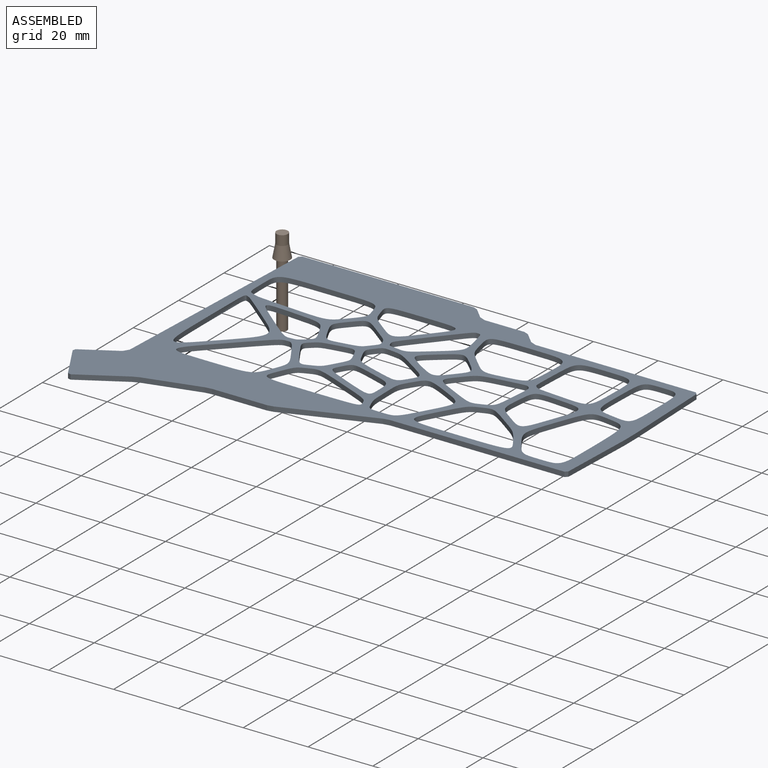
[diagram: assembled view]
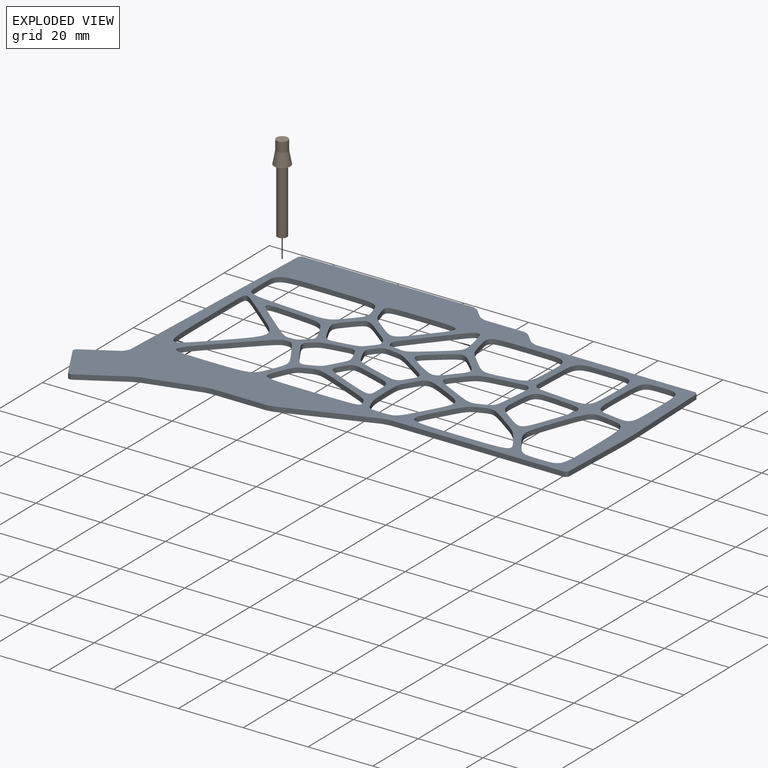
[diagram: exploded view]
GUIDED TOUR — FREECAD ASSEMBLY "BottomLid"

This assembly has 2 components, labeled P0..P1 below (a component is one placed body or linked part; the same part can appear more than once), held together by 0 modeled joints plus 1 derived contact edge. A joint is a constraint between two components; its type names the relative motion it leaves free:
  CONTACT — a derived adjacency edge — the two components touch in the source model (clearance under 2% of the assembly's diagonal); it is measured from the geometry, not a modeled constraint.
Axis/direction vectors are unit vectors and 'through' points are millimeter coordinates, both in the assembly's world frame.

MATES
  1. CONTACT "contact_0_1": P0 <-> P1, contact direction (0.000, 0.000, 1.000) through (1.46, 3.35, -9.50) mm (derived from contact, not a modeled constraint)

ASSEMBLY ORDER
  1. P1 — the base component [order verified]
  2. P0 [order verified]
Order-tag legend:
  [order verified] — this step's position reverses a verified removal order: the component was checked to insert without passing through the ones already placed.

Of the 2 components, 2 carry a construction recipe — the FreeCAD feature program (sketches with constraints, then the solid features that consume them) that regenerates the part from scratch, quoted from this document or from the linked companion document it references; the rest are supplied as boundary geometry only. The tour below walks the components in assembly order: each is shown spotlighted twice — in the assembled view, then in the exploded view, where a leader line traces a displaced component back to its assembled socket (components that stay in place when exploded have no leader line; saturated green if recipe-attached, orange if geometry-only; every other component desaturated gray) — followed by its recipe or geometry summary and the mates that hold it.
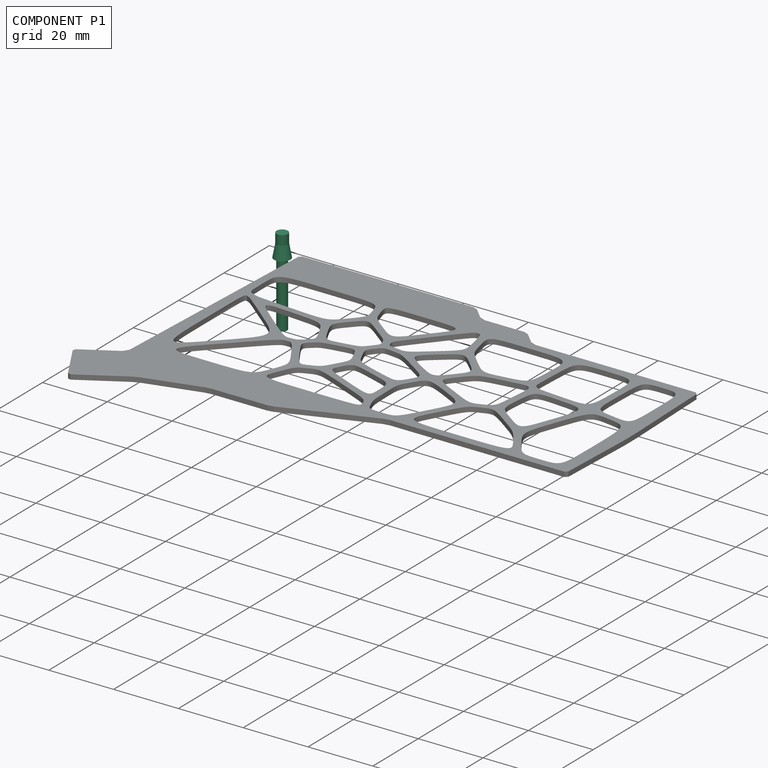
[diagram: component P1 — assembled]
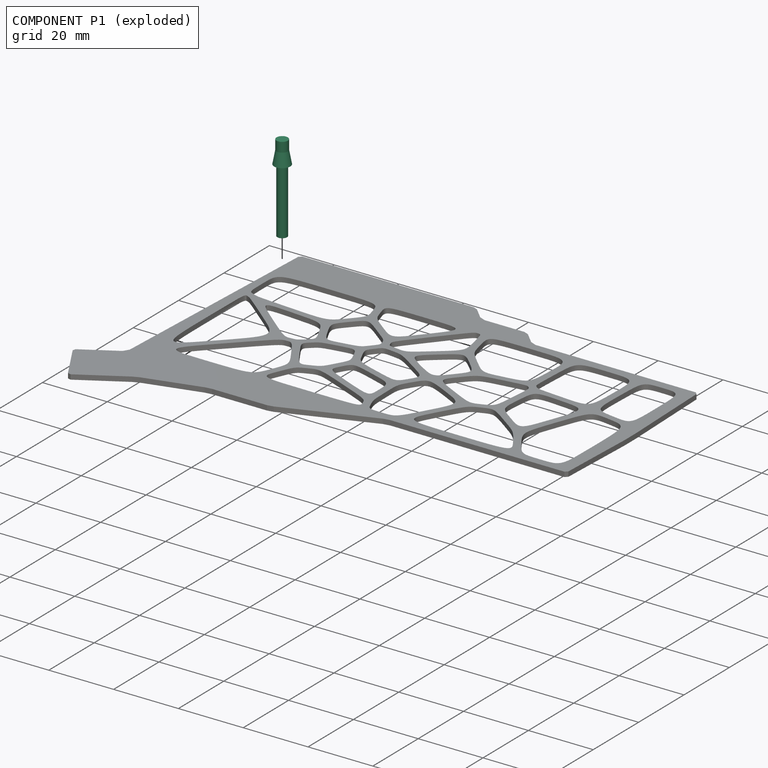
[diagram: component P1 — exploded]
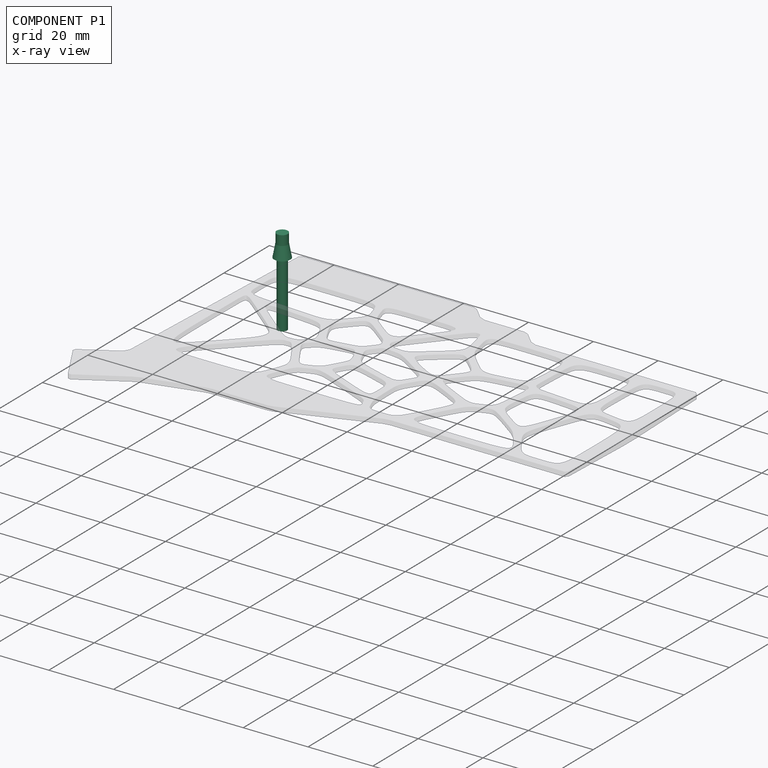
[diagram: component P1 — x-ray view]
COMPONENT P1 — recipe-attached ("ScrewAndInsertR", a linked part whose construction recipe lives in a companion FreeCAD document of the same project; that document's serialized recipe follows).
Held by: resting contact with P0 (derived edge).
Construction recipe (the companion document, serialized — sketch geometry with constraints, then the solid features built on it; lengths are millimeters unless a unit is written):

FCSTD DOCUMENT  (FreeCAD 0.21R33668 +26 (Git))
Label: ScrewAndInsertCutout
License: All rights reserved
LicenseURL: http://en.wikipedia.org/wiki/All_rights_reserved
objects: Sketcher::SketchObject×4, PartDesign::Pad×2, PartDesign::AdditiveLoft×1, PartDesign::Body×1, Part::Refine×1, Spreadsheet::Sheet×1
note: 12 computed .brp shape members not serialized (recipe doc carries the construction recipe); baked Part::Feature solids carry a one-line shape summary decoded from their .brp

FEATURE [Sketcher::SketchObject] Sketch014
  AttachmentOffset = pos=(0,0,-5) rot=(0,0,1;0rad)
  FullyConstrained = true
  MapMode = 5
  Placement = pos=(0,0,-5) rot=(0,0,1;0rad)
  Support = -> [XY_Plane008]
  expr: Constraints[1] = <<S>>.hsDia
  sketch-geometry (1):
    g0: Circle CenterX=0 CenterY=0 CenterZ=0 NormalX=0 NormalY=0 NormalZ=1 AngleXU=0 Radius=1.75
  constraints (2):
    c: Coincident(g0,g-1)
    c: Diameter(g0) = 3.5
FEATURE [Sketcher::SketchObject] Sketch015
  AttachmentOffset = pos=(0,0,-5) rot=(0,0,1;0rad)
  FullyConstrained = true
  MapMode = 5
  Placement = pos=(0,0,-5) rot=(0,0,1;0rad)
  Support = -> [XY_Plane008]
  expr: .AttachmentOffset.Base.z = <<S>>.hsHei
  expr: Constraints[1] = <<S>>.hsDia
  sketch-geometry (1):
    g0: Circle CenterX=0 CenterY=0 CenterZ=0 NormalX=0 NormalY=0 NormalZ=1 AngleXU=0 Radius=1.75
  constraints (2):
    c: Coincident(g0,g-1)
    c: Diameter(g0) = 3.5
FEATURE [Sketcher::SketchObject] Sketch016
  AttachmentOffset = pos=(0,0,-9) rot=(0,0,1;0rad)
  FullyConstrained = true
  MapMode = 5
  Placement = pos=(0,0,-9) rot=(0,0,1;0rad)
  Support = -> [XY_Plane008]
  expr: .AttachmentOffset.Base.z = <<S>>.hslHei
  expr: Constraints[1] = <<S>>.hslDia
  sketch-geometry (1):
    g0: Circle CenterX=0 CenterY=0 CenterZ=0 NormalX=0 NormalY=0 NormalZ=1 AngleXU=0 Radius=2.5
  constraints (2):
    c: Coincident(g0,g-1)
    c: Diameter(g0) = 5
FEATURE [PartDesign::AdditiveLoft] AdditiveLoft001  label="AdditiveLoft"
  Closed = false
  Profile = -> Sketch015
  Ruled = false
  Sections = -> [Sketch016]
FEATURE [Sketcher::SketchObject] Sketch017
  AttachmentOffset = pos=(0,0,-9) rot=(0,0,1;0rad)
  FullyConstrained = true
  MapMode = 5
  Placement = pos=(0,0,-9) rot=(0,0,1;0rad)
  Support = -> [XY_Plane008]
  expr: Constraints[1] = <<S>>.scrDia
  sketch-geometry (1):
    g0: Circle CenterX=0 CenterY=0 CenterZ=0 NormalX=0 NormalY=0 NormalZ=1 AngleXU=0 Radius=1.5
  constraints (2):
    c: Coincident(g0,g-1)
    c: Diameter(g0) = 3
FEATURE [PartDesign::Pad] Pad007
  BaseFeature = -> AdditiveLoft001
  Direction = (0,0,1)
  Length = 20
  Length2 = 10
  Profile = -> Sketch017
  ReferenceAxis = -> Sketch017 [N_Axis]
  Reversed = true
  Type = 0
  expr: Length = <<S>>.scrHei
FEATURE [PartDesign::Pad] Pad008
  BaseFeature = -> Pad007
  Direction = (0,0,1)
  Length = 3
  Length2 = 10
  Profile = -> Sketch014
  ReferenceAxis = -> Sketch014 [N_Axis]
  Type = 0
FEATURE [PartDesign::Body] Body008  label="ScrewAndInsert"
  Group = -> [Sketch014,Sketch015,Sketch016,Sketch017,AdditiveLoft001,Pad007,Pad008]
  Origin = -> Origin008
  Tip = -> Pad008
FEATURE [Part::Refine] Body009  label="ScrewAndInsertR"
  Source = -> Body008
FEATURE [Spreadsheet::Sheet] Spreadsheet  label="S"
  cells = A1='Screw Diameter; B1(scrDia)==3 mm; C1='M3 hex countersunk; D1='Screw Height; E1(scrHei)==20 mm; F1='Through all to cut through bottom plate; A2='Heatset Loft; B2(hslDia)==5 mm; D2='Loft Height; E2(hslHei)==0 mm - 9 mm; A3='HeatsetDiameter; B3(hsDia)==3.5 mm; D3='Insert Height; E3(hsHei)==0 mm - 5 mm
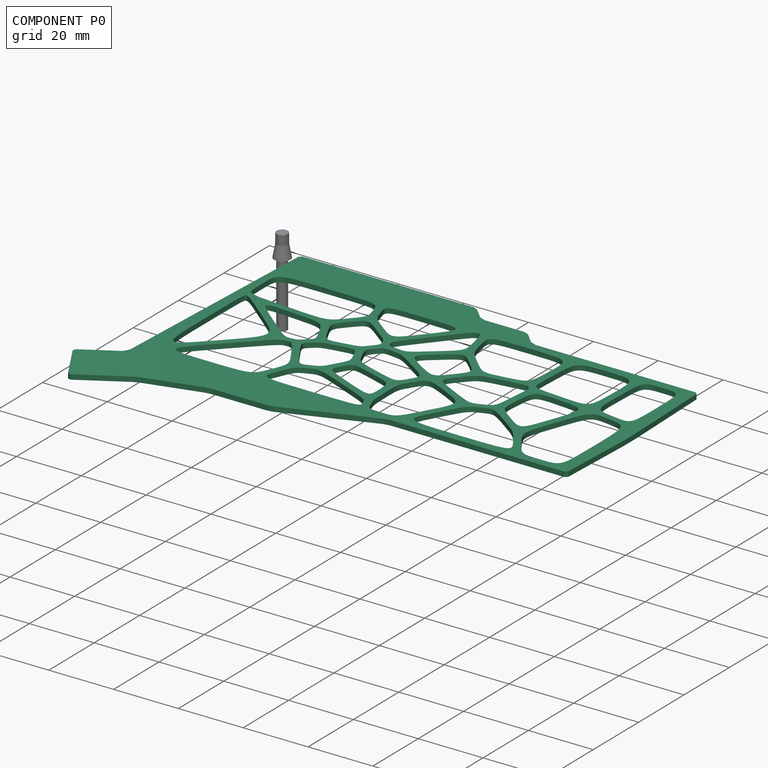
[diagram: component P0 — assembled]
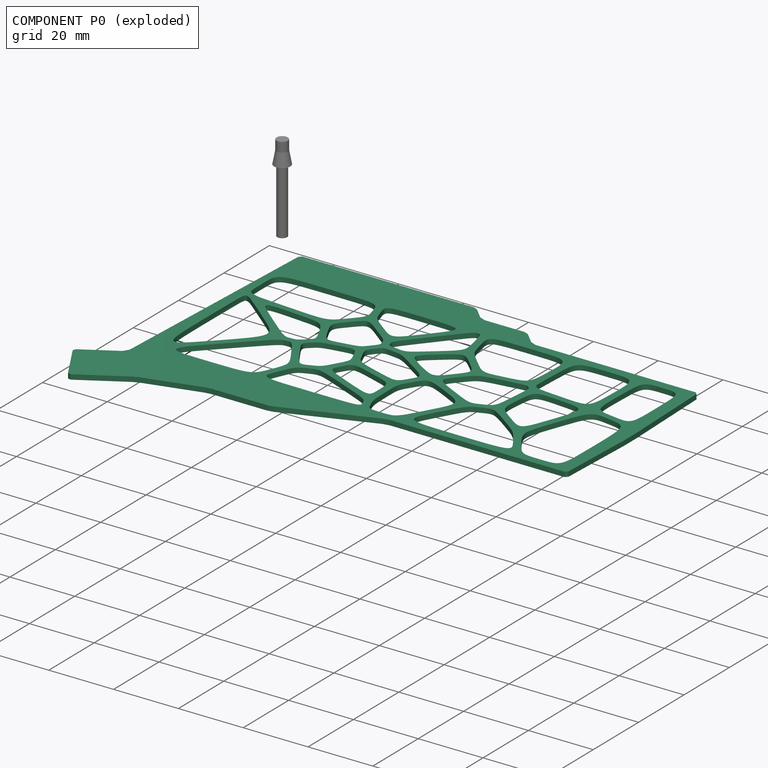
[diagram: component P0 — exploded]
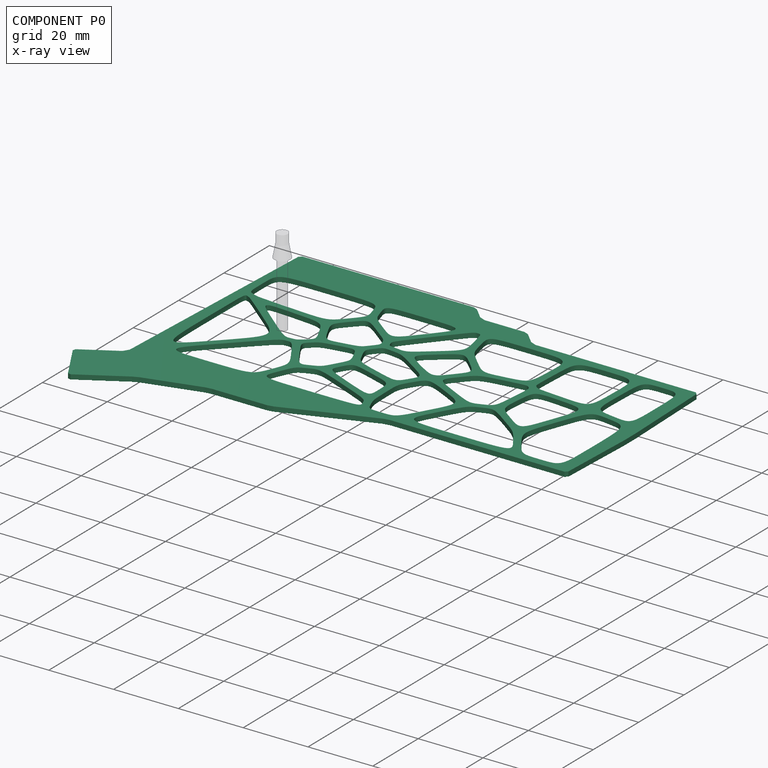
[diagram: component P0 — x-ray view]
COMPONENT P0 — recipe-attached ("BottomLid", modeled in this document).
Held by: resting contact with P1 (derived edge).
Construction recipe (the document's own serialized feature program — sketch geometry with constraints, then the solid features built on it; lengths are millimeters unless a unit is written):

FEATURE [Sketcher::SketchObject] Sketch007
  FullyConstrained = false
  Placement = pos=(0,0,-11.5) rot=(0,0,1;3.14159rad)
  sketch-geometry (30):
    g0: LineSegment StartX=-2.43594 StartY=-5.64375 StartZ=0 EndX=-55.5287 EndY=-5.64375 EndZ=0
    g1: LineSegment StartX=-55.5287 StartY=-5.64375 StartZ=0 EndX=-57.2358 EndY=-4.93664 EndZ=0
    g2: LineSegment StartX=-57.2358 StartY=-4.93664 StartZ=0 EndX=-60.5841 EndY=-1.58836 EndZ=0
    g3: LineSegment StartX=-60.5841 StartY=-1.58836 StartZ=0 EndX=-62.2912 EndY=-0.881255 EndZ=0
    g4: LineSegment StartX=-62.2912 StartY=-0.881255 StartZ=0 EndX=-74.5787 EndY=-0.881255 EndZ=0
    g5: LineSegment StartX=-74.5787 StartY=-0.881255 StartZ=0 EndX=-76.2858 EndY=-0.174148 EndZ=0
    g6: LineSegment StartX=-76.2858 StartY=-0.174148 StartZ=0 EndX=-79.6341 EndY=3.17413 EndZ=0
    g7: LineSegment StartX=-79.6341 StartY=3.17413 StartZ=0 EndX=-81.3412 EndY=3.88124 EndZ=0
    g8: LineSegment StartX=-81.3412 StartY=3.88124 StartZ=0 EndX=-130.898 EndY=3.88124 EndZ=0
    g9: LineSegment StartX=-130.898 StartY=3.88124 StartZ=0 EndX=-131.93 EndY=4.88072 EndZ=0
    g10: LineSegment StartX=-131.93 StartY=4.88072 StartZ=0 EndX=-132.851 EndY=33.2719 EndZ=0
    g11: LineSegment StartX=-132.851 StartY=33.2719 StartZ=0 EndX=-132.851 EndY=38.1658 EndZ=0
    g12: LineSegment StartX=-132.851 StartY=38.1658 StartZ=0 EndX=-131.945 EndY=61.7945 EndZ=0
    g13: LineSegment StartX=-130.906 StartY=62.7937 StartZ=0 EndX=-131.945 EndY=61.7945 EndZ=0
    g14: LineSegment StartX=-130.906 StartY=62.7937 StartZ=0 EndX=-76.9325 EndY=62.7937 EndZ=0
    g15: LineSegment StartX=-76.9325 StartY=62.7937 StartZ=0 EndX=-74.9942 EndY=63.1394 EndZ=0
    g16: LineSegment StartX=-74.9942 StartY=63.1394 StartZ=0 EndX=-48.2959 EndY=72.9731 EndZ=0
    g17: LineSegment StartX=-48.2959 StartY=72.9731 StartZ=0 EndX=-46.3575 EndY=73.3187 EndZ=0
    g18: LineSegment StartX=-46.3575 StartY=73.3187 StartZ=0 EndX=-29.3775 EndY=73.3187 EndZ=0
    g19: LineSegment StartX=-29.3775 StartY=73.3187 StartZ=0 EndX=-27.4116 EndY=73.5776 EndZ=0
    g20: LineSegment StartX=-27.4116 StartY=73.5776 StartZ=0 EndX=-10.5611 EndY=78.0927 EndZ=0
    g21: LineSegment StartX=-10.5611 StartY=78.0927 StartZ=0 EndX=-8.72911 EndY=78.8515 EndZ=0
    g22: LineSegment StartX=-8.72911 StartY=78.8515 StartZ=0 EndX=4.90861 EndY=86.7252 EndZ=0
    g23: LineSegment StartX=4.90861 StartY=86.7252 StartZ=0 EndX=6.27463 EndY=86.3592 EndZ=0
    g24: LineSegment StartX=6.27463 StartY=86.3592 StartZ=0 EndX=13.2996 EndY=74.1915 EndZ=0
    g25: LineSegment StartX=13.2996 StartY=74.1915 StartZ=0 EndX=12.9336 EndY=72.8255 EndZ=0
    g26: LineSegment StartX=12.9336 StartY=72.8255 StartZ=0 EndX=2.57314 EndY=66.8439 EndZ=0
    g27: LineSegment StartX=2.57314 StartY=66.8439 StartZ=0 EndX=1.66349 EndY=65.3448 EndZ=0
    g28: LineSegment StartX=1.66349 StartY=65.3448 StartZ=0 EndX=-1.39232 EndY=-4.6447 EndZ=0
    g29: LineSegment StartX=-1.39232 StartY=-4.6447 StartZ=0 EndX=-2.43594 EndY=-5.64375 EndZ=0
  constraints (35):
    c: Horizontal(g0)
    c: Coincident(g0,g1)
    c: Coincident(g1,g2)
    c: Coincident(g2,g3)
    c: Coincident(g3,g4)
    c: Horizontal(g4)
    c: Coincident(g4,g5)
    c: Coincident(g5,g6)
    c: Coincident(g6,g7)
    c: Coincident(g7,g8)
    c: Horizontal(g8)
    c: Coincident(g8,g9)
    c: Coincident(g9,g10)
    c: Coincident(g10,g11)
    c: Vertical(g11)
    c: Coincident(g11,g12)
    c: Coincident(g12,g13)
    c: Coincident(g13,g14)
    c: Horizontal(g14)
    c: Coincident(g14,g15)
    c: Coincident(g15,g16)
    c: Coincident(g16,g17)
    c: Coincident(g17,g18)
    c: Coincident(g18,g19)
    c: Coincident(g19,g20)
    c: Coincident(g20,g21)
    c: Coincident(g21,g22)
    c: Coincident(g22,g23)
    c: Coincident(g23,g24)
    c: Coincident(g24,g25)
    c: Coincident(g25,g26)
    c: Coincident(g26,g27)
    c: Coincident(g27,g28)
    c: Coincident(g28,g29)
    c: Coincident(g29,g0)
FEATURE [Sketcher::SketchObject] Sketch008
  AttachmentOffset = pos=(0,0,-11.5) rot=(0,0,1;0rad)
  ExternalGeometry = -> [Sketch007]
  FullyConstrained = true
  MapMode = 5
  Placement = pos=(0,0,-11.5) rot=(0,0,1;0rad)
  Support = -> [XY_Plane004]
  sketch-geometry (30):
    g0: LineSegment StartX=1.88309 StartY=4.42234 StartZ=0 EndX=2.63668 EndY=5.14375 EndZ=0
    g1: LineSegment StartX=2.63668 StartY=5.14375 StartZ=0 EndX=55.4292 EndY=5.14375 EndZ=0
    g2: LineSegment StartX=56.9526 StartY=4.51276 StartZ=0 EndX=60.3008 EndY=1.16448 EndZ=0
    g3: LineSegment StartX=62.1917 StartY=0.381255 StartZ=0 EndX=74.4792 EndY=0.381255 EndZ=0
    g4: LineSegment StartX=76.0026 StartY=-0.249732 StartZ=0 EndX=79.3508 EndY=-3.59801 EndZ=0
    g5: LineSegment StartX=81.2417 StartY=-4.38124 StartZ=0 EndX=130.695 EndY=-4.38124 EndZ=0
    g6: LineSegment StartX=130.695 StartY=-4.38124 StartZ=0 EndX=131.437 EndY=-5.09919 EndZ=0
    g7: LineSegment StartX=131.437 StartY=-5.09919 StartZ=0 EndX=132.351 EndY=-33.28 EndZ=0
    g8: LineSegment StartX=132.351 StartY=-33.28 StartZ=0 EndX=132.351 EndY=-38.1562 EndZ=0
    g9: LineSegment StartX=132.351 StartY=-38.1562 StartZ=0 EndX=131.453 EndY=-61.5739 EndZ=0
    g10: LineSegment StartX=131.453 StartY=-61.5739 StartZ=0 EndX=130.705 EndY=-62.2937 EndZ=0
    g11: LineSegment StartX=130.705 StartY=-62.2937 StartZ=0 EndX=76.8883 EndY=-62.2937 EndZ=0
    g12: LineSegment StartX=74.8629 StartY=-62.6549 StartZ=0 EndX=48.1646 EndY=-72.4886 EndZ=0
    g13: LineSegment StartX=46.3133 StartY=-72.8187 StartZ=0 EndX=29.3447 EndY=-72.8187 EndZ=0
    g14: LineSegment StartX=27.3138 StartY=-73.0861 StartZ=0 EndX=10.4 EndY=-77.6182 EndZ=0
    g15: LineSegment StartX=8.50749 StartY=-78.4021 StartZ=0 EndX=-4.97925 EndY=-86.1886 EndZ=0
    g16: LineSegment StartX=-4.97925 StartY=-86.1886 StartZ=0 EndX=-5.94517 EndY=-85.9298 EndZ=0
    g17: LineSegment StartX=-5.94517 StartY=-85.9298 StartZ=0 EndX=-12.7631 EndY=-74.1209 EndZ=0
    g18: LineSegment StartX=-12.7631 StartY=-74.1209 StartZ=0 EndX=-12.5042 EndY=-73.155 EndZ=0
    g19: LineSegment StartX=-12.5042 StartY=-73.155 StartZ=0 EndX=-2.21216 EndY=-67.2128 EndZ=0
    g20: LineSegment StartX=55.4292 StartY=5.14375 StartZ=0 EndX=56.9526 EndY=4.51276 EndZ=0
    g21: LineSegment StartX=60.3008 StartY=1.16448 StartZ=0 EndX=62.1917 EndY=0.381255 EndZ=0
    g22: LineSegment StartX=74.4792 StartY=0.381255 StartZ=0 EndX=76.0026 EndY=-0.249732 EndZ=0
    g23: LineSegment StartX=79.3508 StartY=-3.59801 StartZ=0 EndX=81.2417 EndY=-4.38124 EndZ=0
    g24: LineSegment StartX=74.8629 StartY=-62.6549 StartZ=0 EndX=76.8883 EndY=-62.2937 EndZ=0
    g25: LineSegment StartX=27.3138 StartY=-73.0861 StartZ=0 EndX=29.3447 EndY=-72.8187 EndZ=0
    g26: LineSegment StartX=46.3133 StartY=-72.8187 StartZ=0 EndX=48.1646 EndY=-72.4886 EndZ=0
    g27: LineSegment StartX=8.50749 StartY=-78.4021 StartZ=0 EndX=10.4 EndY=-77.6182 EndZ=0
    g28: LineSegment StartX=-2.21216 StartY=-67.2128 StartZ=0 EndX=-1.16956 EndY=-65.4947 EndZ=0
    g29: LineSegment StartX=-1.16956 StartY=-65.4947 StartZ=0 EndX=1.88309 EndY=4.42234 EndZ=0
  constraints (90):
    c: Coincident(g0,g1)
    c: Horizontal(g1)
    c: Horizontal(g3)
    c: Horizontal(g5)
    c: Coincident(g5,g6)
    c: Coincident(g6,g7)
    c: Coincident(g7,g8)
    c: Coincident(g8,g9)
    c: Coincident(g9,g10)
    c: Coincident(g10,g11)
    c: Horizontal(g11)
    c: Coincident(g15,g16)
    c: Coincident(g16,g17)
    c: Coincident(g17,g18)
    c: Coincident(g18,g19)
    c: Distance(g0,g-3) = 0.5
    c: Coincident(g20,g1)
    c: Coincident(g20,g2)
    c: Coincident(g21,g2)
    c: Coincident(g21,g3)
    c: Coincident(g22,g3)
    c: Coincident(g22,g4)
    c: Coincident(g23,g4)
    c: Coincident(g23,g5)
    c: Parallel(g6,g-14)
    c: Parallel(g8,g-16)
    c: Parallel(g7,g-15)
    c: Parallel(g9,g-17)
    c: Distance(g-16,g8) = 0.5
    c: Distance(g7,g-15) = 0.5
    c: Distance(g8,g-17) = 0.5
    c: Parallel(g10,g-18)
    c: Distance(g10,g-19) = 0.5
    c: Distance(g-18,g10) = 0.5
    c: Coincident(g24,g12)
    c: Coincident(g24,g11)
    c: Parallel(g-21,g24)
    c: Coincident(g25,g14)
    c: Coincident(g25,g13)
    c: Coincident(g26,g13)
    c: Coincident(g26,g12)
    c: Parallel(g26,g-22)
    c: Parallel(g-20,g12)
    c: Parallel(g13,g-23)
    c: Parallel(g25,g-25)
    c: Parallel(g-24,g14)
    c: Coincident(g27,g15)
    c: Coincident(g27,g14)
    c: Parallel(g-32,g27)
    c: Parallel(g15,g-26)
    c: Parallel(g-28,g17)
    c: Parallel(g18,g-29)
    c: Parallel(g-30,g19)
    c: Parallel(g16,g-27)
    c: Distance(g16,g-28) = 0.5
    c: Distance(g-27,g16) = 0.5
    c: Distance(g15,g-26) = 0.5
    c: Distance(g15,g-32) = 0.5
    c: Distance(g-32,g14) = 0.5
    c: Distance(g13,g-23) = 0.5
    c: Distance(g14,g-25) = 0.5
    c: Distance(g13,g-22) = 0.5
    c: Distance(g-22,g12) = 0.5
    c: Distance(g-21,g24) = 0.5
    c: Distance(g18,g-30) = 0.5
    c: Distance(g-29,g18) = 0.5
    c: Coincident(g19,g28)
    c: Coincident(g28,g29)
    c: Coincident(g29,g0)
    c: Parallel(g-4,g29)
    c: Parallel(g-31,g28)
    c: Distance(g-31,g28) = 0.5
    c: Distance(g28,g-4) = 0.5
    c: Parallel(g-5,g0)
    c: Distance(g-5,g0) = 0.5
    c: Parallel(g20,g-6)
    c: Parallel(g2,g-7)
    c: Parallel(g-8,g21)
    c: Distance(g2,g-6) = 0.5
    c: Distance(g2,g-7) = 0.5
    c: Distance(g-9,g3) = 0.5
    c: Distance(g2,g-8) = 0.5
    c: Distance(g-10,g22) = 0.5
    c: Parallel(g22,g-10)
    c: Parallel(g4,g-13)
    c: Distance(g-13,g4) = 0.5
    c: Parallel(g-11,g23)
    c: Distance(g-14,g6) = 0.5
    c: Distance(g5,g-12) = 0.5
    c: Distance(g4,g-11) = 0.5
FEATURE [PartDesign::Pad] Pad004
  Direction = (0,0,1)
  Length = 1.5
  Length2 = 10
  Profile = -> Sketch008
  ReferenceAxis = -> Sketch008 [N_Axis]
  Type = 0
FEATURE [PartDesign::SubShapeBinder] Binder
  BindCopyOnChange = 0
  BindMode = 0
  ClaimChildren = false
  Context = -> Body004 [Binder.]
  Fuse = false
  MakeFace = true
  OffsetFill = false
  OffsetIntersection = false
  OffsetJoinType = 0
  OffsetOpenResult = false
  PartialLoad = false
  Relative = true
  Support = -> [Clone]
  _Version = 2
FEATURE [PartDesign::Pocket] Pocket
  BaseFeature = -> Pad004
  Direction = (2.34403e-09,-6.44608e-09,-0.015653)
  Length = 5
  Length2 = 5
  Midplane = true
  Profile = -> Binder
  Type = 1
FEATURE [PartDesign::Body] Body004  label="BottomLid"
  Group = -> [Sketch007,Sketch008,Pad004,Binder,Pocket]
  Origin = -> Origin004
  Tip = -> Pocket
PROVENANCE & LICENSES
Assembly and component geometry: a FreeCAD (.FCStd) document from a public repository crawl; components, placements and joints were extracted with FreeCAD and each solid tessellated.
Construction recipes: the document's own serialized feature recipes (and, for linked parts, the recipes of companion documents from the same project).
License: mit.
Joints: native FreeCAD joints and A2plus constraints are mapped to standard mate types; edges marked 'derived from contact' connect touching components and are measured from the geometry, not modeled.
Verification: 2 of this assembly's 2 components carry a construction recipe (1 from this document itself, 1 from linked companion documents in the same project); the rest are geometry-only. Every component's tessellation passed the extraction mesh gates (mesh-volume checksum against the B-rep where available, bounding-box inflation <= 2%).
Renders: orthographic iso camera (az 35 / el 25); the floor grid conveys scale (grid pitch printed in each image; no ruler). In the exploded view each component is displaced by its stored offset vector: the offsets alone carry the explosion direction (mate normal/axis signs are not orientation cues and do not encode it), and separation distances are assigned per mate-chain, not proportionally to assembly-order depth.
